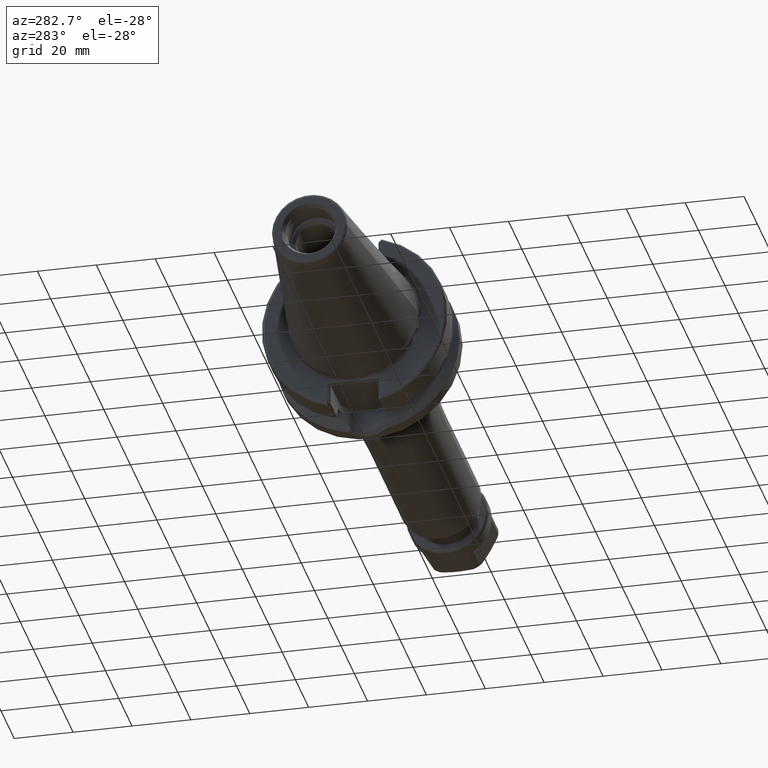
[diagram: clean part render]
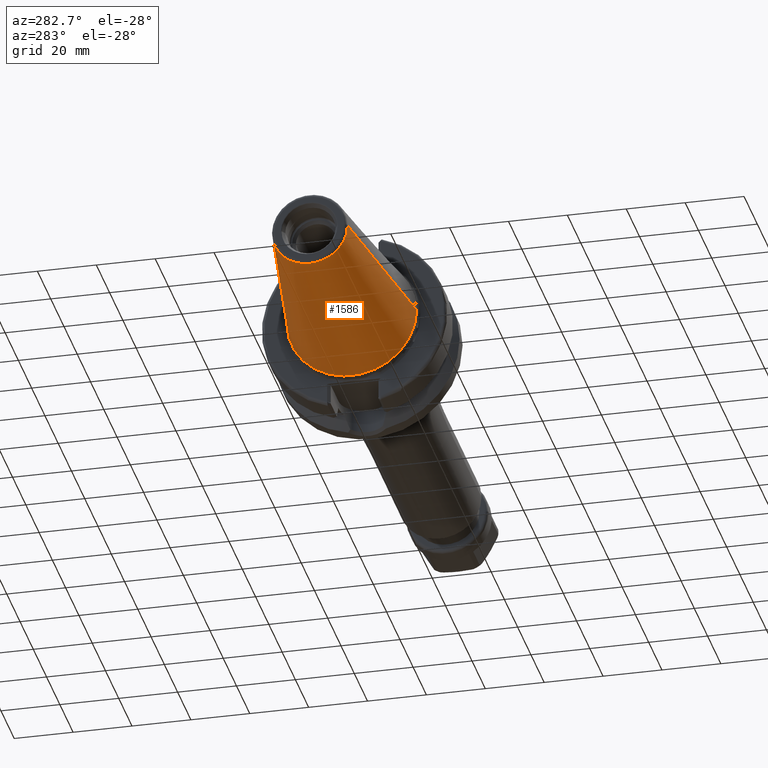
[diagram: same view with one face highlighted and labeled with its STEP entity id]
A machine part, auxiliary view. The second image highlights one B-rep face of the part: STEP entity #1586.
In plain terms, the highlighted conical surface has half-angle 8.298 deg.
Its self-contained STEP definition (entity closure, byte-faithful):
#32=CARTESIAN_POINT('',(-6.454431866917E1,0.E0,0.E0));
#33=DIRECTION('',(-1.E0,0.E0,0.E0));
#34=DIRECTION('',(0.E0,1.E0,0.E0));
#35=AXIS2_PLACEMENT_3D('',#32,#33,#34);
#47=DIRECTION('',(-9.895312636440E-1,-1.443186691705E-1,0.E0));
#48=VECTOR('',#47,6.394703124850E1);
#49=CARTESIAN_POINT('',(-1.266732031557E0,2.204025284980E1,0.E0));
#50=LINE('',#49,#48);
#51=DIRECTION('',(-9.895312636440E-1,1.443186691705E-1,0.E0));
#52=VECTOR('',#51,6.394703124850E1);
#53=CARTESIAN_POINT('',(-1.266732031557E0,-2.204025284980E1,0.E0));
#54=LINE('',#53,#52);
#55=CARTESIAN_POINT('',(-1.266732031557E0,0.E0,0.E0));
#56=DIRECTION('',(-1.E0,0.E0,0.E0));
#57=DIRECTION('',(0.E0,1.E0,0.E0));
#58=AXIS2_PLACEMENT_3D('',#55,#56,#57);
#1246=CARTESIAN_POINT('',(-6.454431866917E1,1.281150240261E1,0.E0));
#1248=VERTEX_POINT('',#1246);
#1250=CARTESIAN_POINT('',(-6.454431866917E1,-1.281150240261E1,0.E0));
#1252=VERTEX_POINT('',#1250);
#1465=CARTESIAN_POINT('',(-1.266732031557E0,2.204025284980E1,0.E0));
#1466=VERTEX_POINT('',#1465);
#1467=CARTESIAN_POINT('',(-1.266732031557E0,-2.204025284980E1,0.E0));
#1468=VERTEX_POINT('',#1467);
#1574=CARTESIAN_POINT('',(-3.290552535036E1,0.E0,0.E0));
#1575=DIRECTION('',(1.E0,0.E0,0.E0));
#1576=DIRECTION('',(0.E0,-1.E0,0.E0));
#1577=AXIS2_PLACEMENT_3D('',#1574,#1575,#1576);
#1578=CONICAL_SURFACE('',#1577,1.742587762621E1,8.297826828206E0);
#1579=ORIENTED_EDGE('',*,*,#1564,.T.);
#1580=ORIENTED_EDGE('',*,*,#1541,.T.);
#1581=ORIENTED_EDGE('',*,*,#1568,.F.);
#1583=ORIENTED_EDGE('',*,*,#1582,.F.);
#1584=EDGE_LOOP('',(#1579,#1580,#1581,#1583));
#1585=FACE_OUTER_BOUND('',#1584,.F.);
#1586=ADVANCED_FACE('',(#1585),#1578,.T.);
#36=CIRCLE('',#35,1.281150240261E1);
#59=CIRCLE('',#58,2.204025284980E1);
#1541=EDGE_CURVE('',#1248,#1252,#36,.T.);
#1564=EDGE_CURVE('',#1466,#1248,#50,.T.);
#1568=EDGE_CURVE('',#1468,#1252,#54,.T.);
#1582=EDGE_CURVE('',#1466,#1468,#59,.T.);